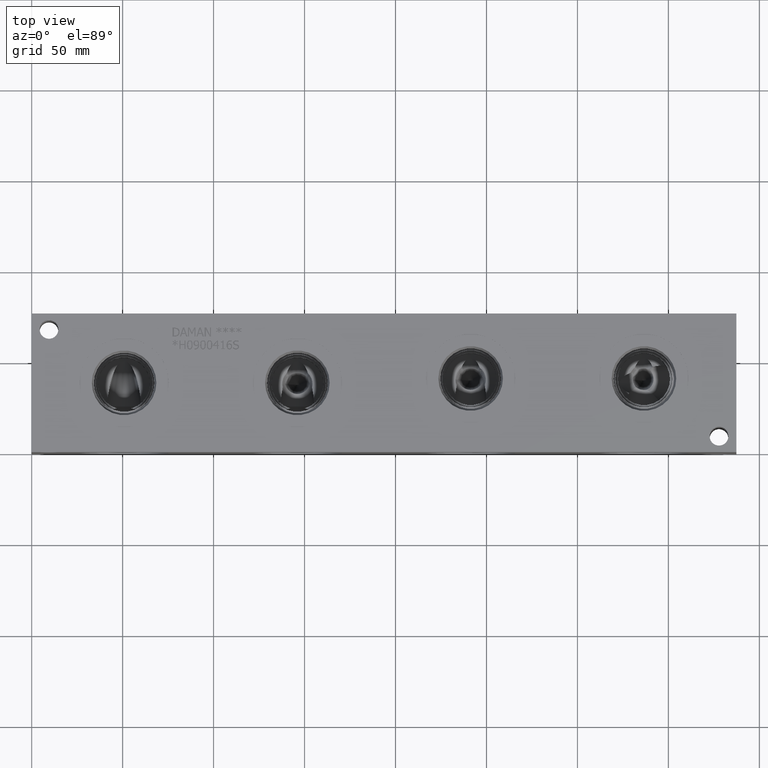
[diagram: clean part render]
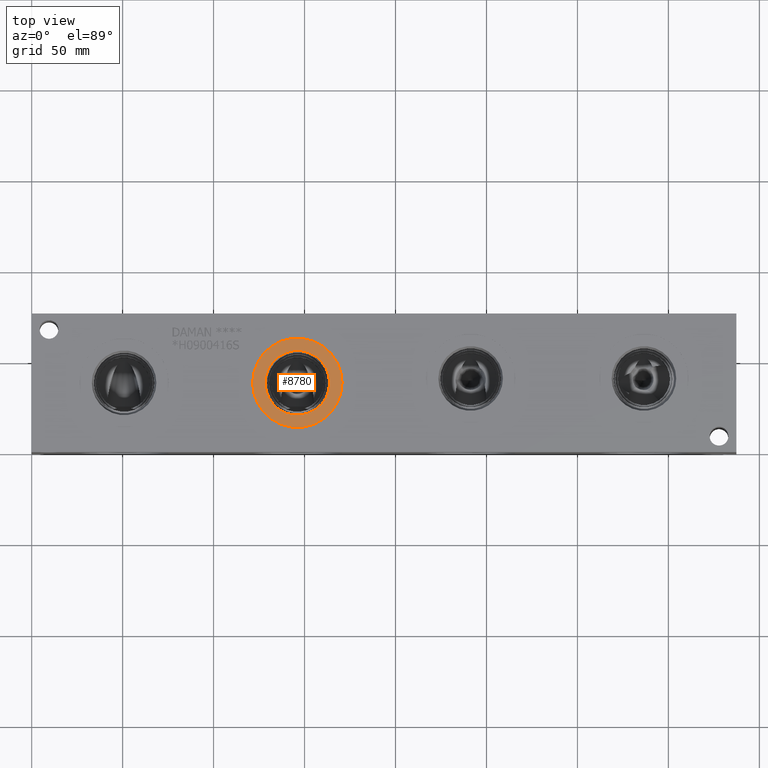
[diagram: same view with one face highlighted and labeled with its STEP entity id]
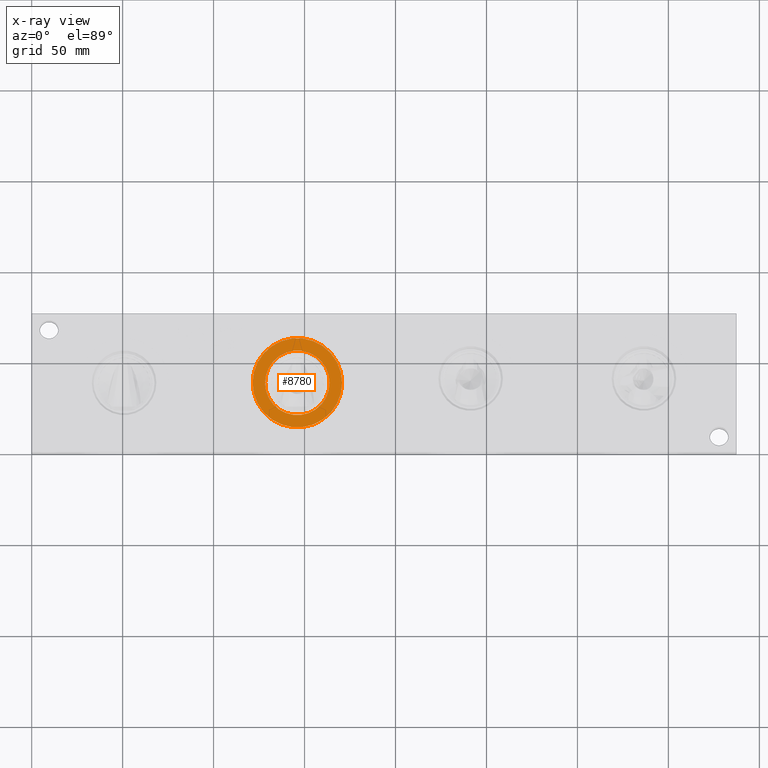
[diagram: x-ray of the same camera — body ghosted, the highlighted face saturated]
A machine part, top view. The second image highlights one B-rep face of the part: STEP entity #8780.
The next image is the same camera in x-ray: the body ghosted, the highlighted face saturated — about 0% of this face is hidden behind the body in this view.
In plain terms, the highlighted planar face has unit normal (0, 0, 1).
Its self-contained STEP definition (entity closure, byte-faithful):
#336=CIRCLE('',#9356,24.5618);
#337=CIRCLE('',#9357,24.5618);
#338=CIRCLE('',#9358,17.7546);
#404=FACE_BOUND('',#1700,.T.);
#1194=FACE_OUTER_BOUND('',#1699,.T.);
#1699=EDGE_LOOP('',(#7686,#7687));
#1700=EDGE_LOOP('',(#7688));
#4080=VERTEX_POINT('',#15522);
#4081=VERTEX_POINT('',#15523);
#4082=VERTEX_POINT('',#15526);
#5300=EDGE_CURVE('',#4080,#4081,#336,.T.);
#5301=EDGE_CURVE('',#4081,#4080,#337,.T.);
#5302=EDGE_CURVE('',#4082,#4082,#338,.T.);
#7686=ORIENTED_EDGE('',*,*,#5300,.T.);
#7687=ORIENTED_EDGE('',*,*,#5301,.T.);
#7688=ORIENTED_EDGE('',*,*,#5302,.F.);
#8032=PLANE('',#9355);
#8780=ADVANCED_FACE('',(#1194,#404),#8032,.T.);
#9355=AXIS2_PLACEMENT_3D('',#15521,#11229,#11230);
#9356=AXIS2_PLACEMENT_3D('',#15524,#11231,#11232);
#9357=AXIS2_PLACEMENT_3D('',#15525,#11233,#11234);
#9358=AXIS2_PLACEMENT_3D('',#15527,#11235,#11236);
#11229=DIRECTION('center_axis',(0.,0.,1.));
#11230=DIRECTION('ref_axis',(1.,0.,0.));
#11231=DIRECTION('center_axis',(0.,0.,1.));
#11232=DIRECTION('ref_axis',(1.,0.,0.));
#11233=DIRECTION('center_axis',(0.,0.,1.));
#11234=DIRECTION('ref_axis',(1.,0.,0.));
#11235=DIRECTION('center_axis',(0.,0.,1.));
#11236=DIRECTION('ref_axis',(1.,0.,0.));
#15521=CARTESIAN_POINT('Origin',(146.05,38.1,75.4126));
#15522=CARTESIAN_POINT('',(170.6118,38.1,75.4126));
#15523=CARTESIAN_POINT('',(121.4882,38.1,75.4126));
#15524=CARTESIAN_POINT('Origin',(146.05,38.1,75.4126));
#15525=CARTESIAN_POINT('Origin',(146.05,38.1,75.4126));
#15526=CARTESIAN_POINT('',(128.2954,38.1,75.4126));
#15527=CARTESIAN_POINT('Origin',(146.05,38.1,75.4126));